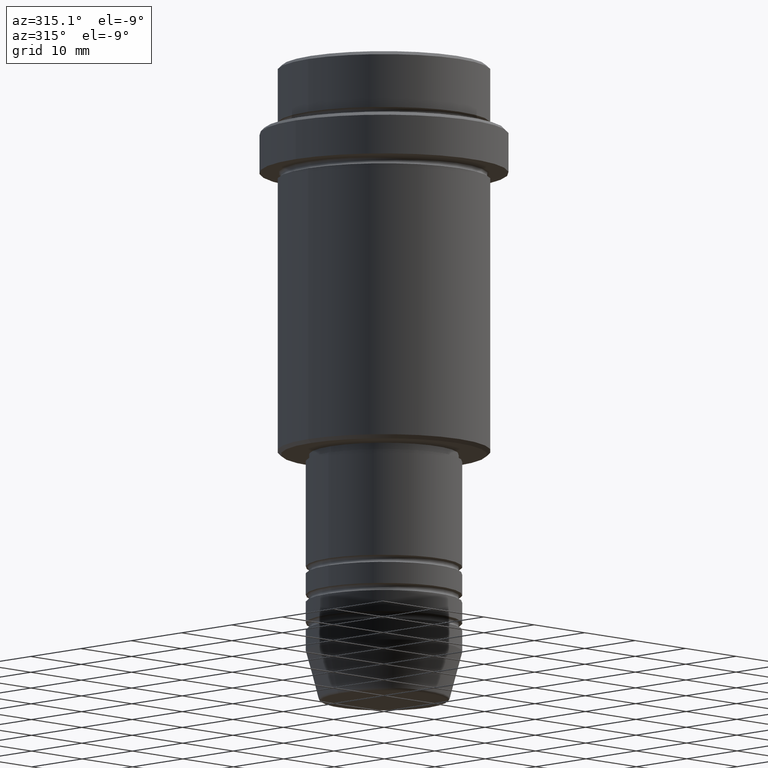
[diagram: clean part render]
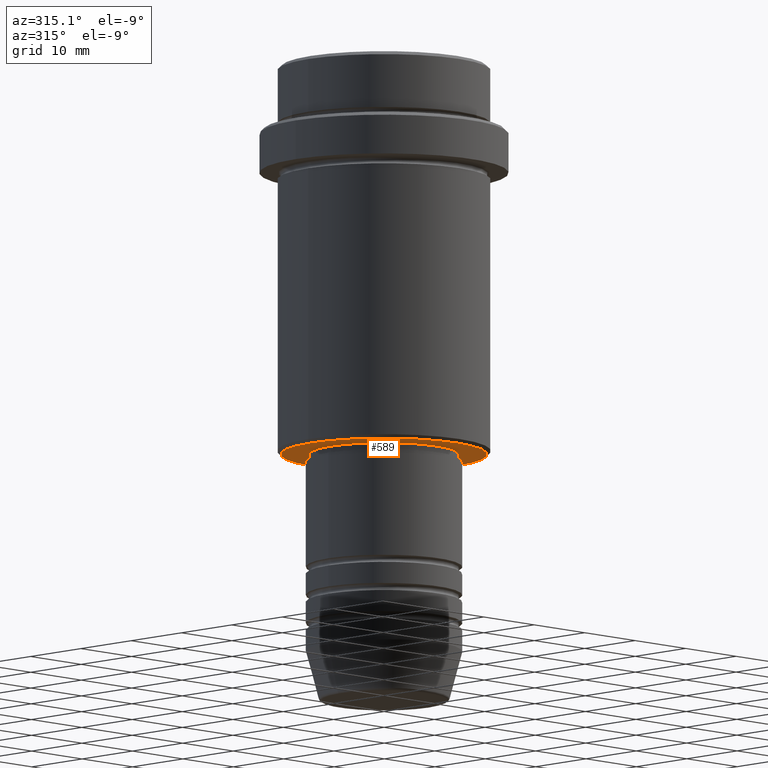
[diagram: same view with one face highlighted and labeled with its STEP entity id]
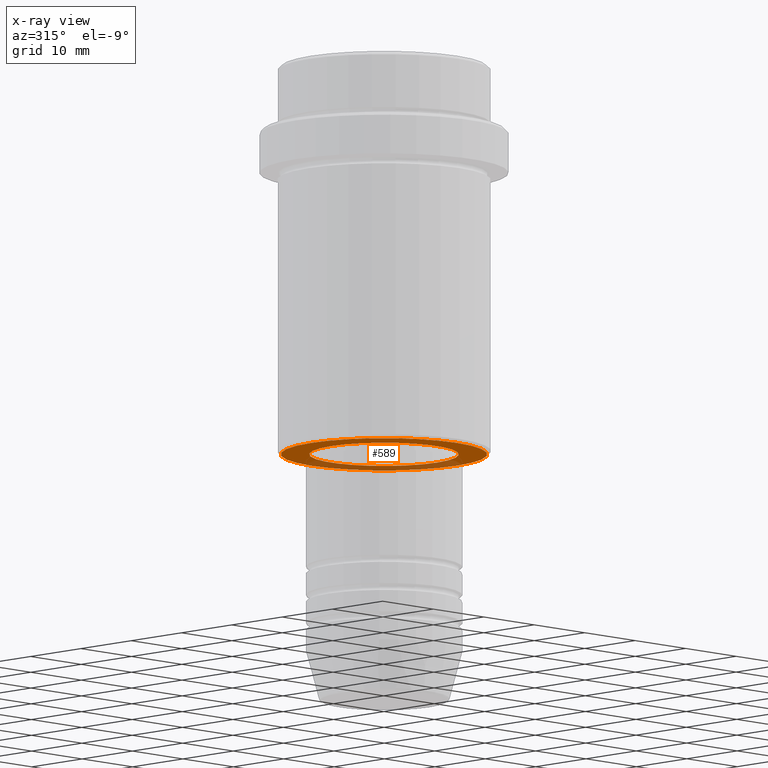
[diagram: x-ray of the same camera — body ghosted, the highlighted face saturated]
A machine part, auxiliary view. The second image highlights one B-rep face of the part: STEP entity #589.
The next image is the same camera in x-ray: the body ghosted, the highlighted face saturated — about 31% of this face is hidden behind the body in this view.
In plain terms, the highlighted planar face has unit normal (0, 0, -1).
Its self-contained STEP definition (entity closure, byte-faithful):
#16 = CARTESIAN_POINT ( 'NONE',  ( 0.000000000000000000, 0.000000000000000000, -55.00000000000000000 ) ) ;
#25 = EDGE_CURVE ( 'NONE', #230, #50, #410, .T. ) ;
#50 = VERTEX_POINT ( 'NONE', #432 ) ;
#90 = ORIENTED_EDGE ( 'NONE', *, *, #105, .T. ) ;
#105 = EDGE_CURVE ( 'NONE', #908, #944, #128, .T. ) ;
#108 = DIRECTION ( 'NONE',  ( 0.000000000000000000, 0.000000000000000000, -1.000000000000000000 ) ) ;
#128 = CIRCLE ( 'NONE', #580, 10.49999999999999289 ) ;
#152 = AXIS2_PLACEMENT_3D ( 'NONE', #16, #108, #987 ) ;
#162 = EDGE_CURVE ( 'NONE', #50, #230, #738, .T. ) ;
#230 = VERTEX_POINT ( 'NONE', #1112 ) ;
#284 = ORIENTED_EDGE ( 'NONE', *, *, #399, .T. ) ;
#366 = DIRECTION ( 'NONE',  ( -0.000000000000000000, -0.000000000000000000, 1.000000000000000000 ) ) ;
#379 = DIRECTION ( 'NONE',  ( -0.000000000000000000, -0.000000000000000000, 1.000000000000000000 ) ) ;
#391 = DIRECTION ( 'NONE',  ( 0.000000000000000000, 0.000000000000000000, -1.000000000000000000 ) ) ;
#399 = EDGE_CURVE ( 'NONE', #944, #908, #1213, .T. ) ;
#409 = FACE_BOUND ( 'NONE', #623, .T. ) ;
#410 = CIRCLE ( 'NONE', #896, 14.49999999999998401 ) ;
#432 = CARTESIAN_POINT ( 'NONE',  ( 14.49999999999998401, 0.000000000000000000, -55.00000000000000000 ) ) ;
#492 = DIRECTION ( 'NONE',  ( 1.000000000000000000, 0.000000000000000000, 0.000000000000000000 ) ) ;
#503 = CARTESIAN_POINT ( 'NONE',  ( -10.49999999999999289, 1.285879139104720042E-15, -55.00000000000000000 ) ) ;
#512 = DIRECTION ( 'NONE',  ( 0.000000000000000000, 0.000000000000000000, -1.000000000000000000 ) ) ;
#580 = AXIS2_PLACEMENT_3D ( 'NONE', #1335, #379, #1257 ) ;
#589 = ADVANCED_FACE ( 'NONE', ( #1385, #409 ), #968, .T. ) ;
#623 = EDGE_LOOP ( 'NONE', ( #90, #284 ) ) ;
#627 = DIRECTION ( 'NONE',  ( -1.000000000000000000, 0.000000000000000000, 0.000000000000000000 ) ) ;
#738 = CIRCLE ( 'NONE', #152, 14.49999999999998401 ) ;
#832 = CARTESIAN_POINT ( 'NONE',  ( 10.49999999999999289, 0.000000000000000000, -55.00000000000000000 ) ) ;
#882 = EDGE_LOOP ( 'NONE', ( #1406, #1045 ) ) ;
#896 = AXIS2_PLACEMENT_3D ( 'NONE', #969, #391, #627 ) ;
#908 = VERTEX_POINT ( 'NONE', #832 ) ;
#944 = VERTEX_POINT ( 'NONE', #503 ) ;
#953 = DIRECTION ( 'NONE',  ( -1.000000000000000000, 0.000000000000000000, -0.000000000000000000 ) ) ;
#968 = PLANE ( 'NONE',  #1124 ) ;
#969 = CARTESIAN_POINT ( 'NONE',  ( 0.000000000000000000, 0.000000000000000000, -55.00000000000000000 ) ) ;
#987 = DIRECTION ( 'NONE',  ( -1.000000000000000000, 0.000000000000000000, 0.000000000000000000 ) ) ;
#1045 = ORIENTED_EDGE ( 'NONE', *, *, #25, .T. ) ;
#1112 = CARTESIAN_POINT ( 'NONE',  ( -14.49999999999998401, 1.806354028742345013E-15, -55.00000000000000000 ) ) ;
#1124 = AXIS2_PLACEMENT_3D ( 'NONE', #1292, #512, #953 ) ;
#1213 = CIRCLE ( 'NONE', #1407, 10.49999999999999289 ) ;
#1257 = DIRECTION ( 'NONE',  ( 1.000000000000000000, 0.000000000000000000, 0.000000000000000000 ) ) ;
#1292 = CARTESIAN_POINT ( 'NONE',  ( 0.000000000000000000, 15.00000000000000000, -55.00000000000000000 ) ) ;
#1335 = CARTESIAN_POINT ( 'NONE',  ( 0.000000000000000000, 0.000000000000000000, -55.00000000000000000 ) ) ;
#1347 = CARTESIAN_POINT ( 'NONE',  ( 0.000000000000000000, 0.000000000000000000, -55.00000000000000000 ) ) ;
#1385 = FACE_OUTER_BOUND ( 'NONE', #882, .T. ) ;
#1406 = ORIENTED_EDGE ( 'NONE', *, *, #162, .T. ) ;
#1407 = AXIS2_PLACEMENT_3D ( 'NONE', #1347, #366, #492 ) ;